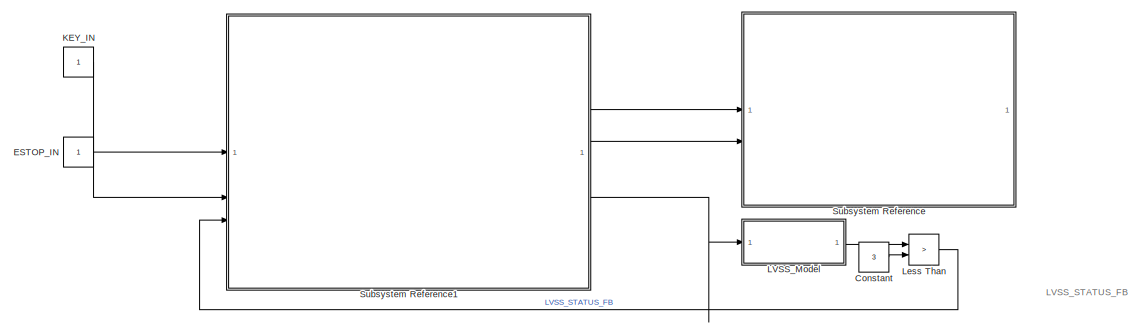
[diagram: root canvas - part 1/3, top right region]
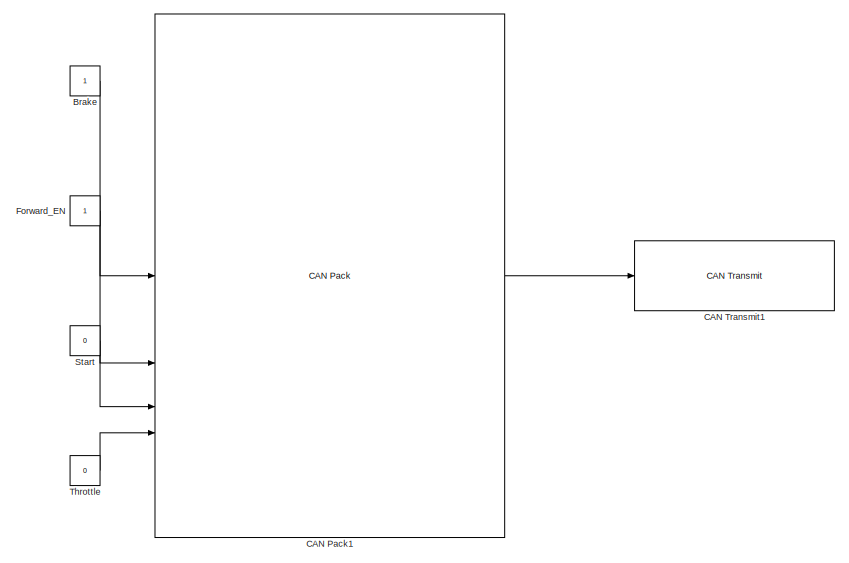
[diagram: root canvas - part 2/3, center side, full height]
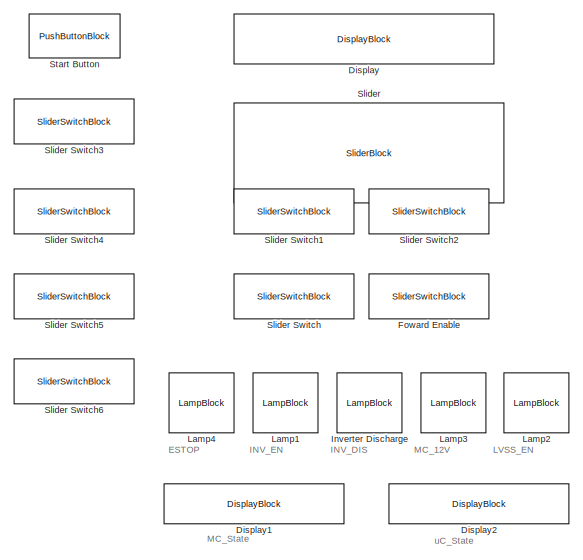
[diagram: root canvas - part 3/3, left side, full height]
MODEL slx_54726d40bb77
KIND model
CONFIG AbsTol = auto
CONFIG EnableMultiTasking = off
CONFIG FixedStep = 0.0001
CONFIG MaxStep = auto
CONFIG MinStep = auto
CONFIG RelTol = 1e-3
CONFIG SampleTimeConstraint = Unconstrained
CONFIG SolverName = ode8
CONFIG StartTime = 0.0
CONFIG StopTime = inf
BLOCK [Constant] Brake
BLOCK [Reference] CAN Pack1  REF=canmsglib/CAN Pack
  LibrarySourceBlock = canlib/CAN Pack
  SourceBlock = canmsglib/CAN Pack
  SourceType = CAN Pack
BLOCK [Reference] CAN Transmit1  REF=canlib/CAN Transmit
  SourceBlock = canlib/CAN Transmit
  SourceType = CAN Transmit
BLOCK [Constant] Constant
  Value = 3
BLOCK [DisplayBlock] Display
  AttributesFormatString = Motor Controller Throttle
  LabelPosition = Hide
  Transparency = 1
BLOCK [DisplayBlock] Display1
  LabelPosition = Hide
  Transparency = 1
BLOCK [DisplayBlock] Display2
  LabelPosition = Hide
  Transparency = 1
BLOCK [Constant] ESTOP_IN
BLOCK [Constant] Forward_EN
BLOCK [SliderSwitchBlock] Foward Enable
  AttributesFormatString = Forward Enable
BLOCK [LampBlock] Inverter Discharge
  LabelPosition = Hide
BLOCK [Constant] KEY_IN
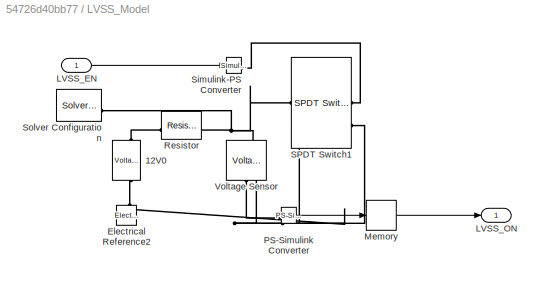
BLOCK [SubSystem] LVSS_Model
BLOCK [Reference] LVSS_Model/12V0  REF=ee_lib/Sources/Voltage Source
  NameLocation = right
  SourceBlock = ee_lib/Sources/Voltage Source
  SourceType = Voltage Source
BLOCK [Reference] LVSS_Model/Electrical Reference2  REF=fl_lib/Electrical/Electrical Elements/Electrical Reference
  LibrarySourceBlock = ee_lib/Connectors &\nReferences/Electrical Reference
  NameLocation = right
  SourceBlock = fl_lib/Electrical/Electrical Elements/Electrical Reference
  SourceType = Electrical Reference
BLOCK [Inport] LVSS_Model/LVSS_EN
BLOCK [Outport] LVSS_Model/LVSS_ON
BLOCK [Memory] LVSS_Model/Memory
BLOCK [Reference] LVSS_Model/PS-Simulink Converter  REF=nesl_utility/PS-Simulink
Converter
  SourceBlock = nesl_utility/PS-Simulink\nConverter
  SourceType = PS-Simulink\nConverter
BLOCK [Reference] LVSS_Model/Resistor  REF=fl_lib/Electrical/Electrical Elements/Resistor
  SourceBlock = fl_lib/Electrical/Electrical Elements/Resistor
  SourceType = Resistor
BLOCK [Reference] LVSS_Model/SPDT Switch1  REF=ee_lib/Switches & Breakers/SPDT Switch
  SourceBlock = ee_lib/Switches & Breakers/SPDT Switch
  SourceType = SPDT Switch
BLOCK [Reference] LVSS_Model/Simulink-PS Converter  REF=nesl_utility/Simulink-PS
Converter
  SourceBlock = nesl_utility/Simulink-PS\nConverter
  SourceType = Simulink-PS\nConverter
BLOCK [Reference] LVSS_Model/Solver Configuration  REF=nesl_utility/Solver
Configuration
  SourceBlock = nesl_utility/Solver\nConfiguration
  SourceType = Solver\nConfiguration
BLOCK [Reference] LVSS_Model/Voltage Sensor  REF=fl_lib/Electrical/Electrical Sensors/Voltage Sensor
  NameLocation = right
  SourceBlock = fl_lib/Electrical/Electrical Sensors/Voltage Sensor
  SourceType = Voltage Sensor
BLOCK [LampBlock] Lamp1
  LabelPosition = Hide
BLOCK [LampBlock] Lamp2
  LabelPosition = Hide
BLOCK [LampBlock] Lamp3
  LabelPosition = Hide
BLOCK [LampBlock] Lamp4
  LabelPosition = Hide
BLOCK [RelationalOperator] Less Than
  InputSameDT = off
  Operator = >
  OutDataTypeStr = boolean
  RndMeth = Simplest
BLOCK [SliderBlock] Slider
  ScaleMax = 4000
BLOCK [SliderSwitchBlock] Slider Switch
  AttributesFormatString = Brake
BLOCK [SliderSwitchBlock] Slider Switch1
  AttributesFormatString = ESTOP
BLOCK [SliderSwitchBlock] Slider Switch2
  AttributesFormatString = Ignition
BLOCK [SliderSwitchBlock] Slider Switch3
  AttributesFormatString = ESTOP
BLOCK [SliderSwitchBlock] Slider Switch4
  AttributesFormatString = ESTOP
BLOCK [SliderSwitchBlock] Slider Switch5
  AttributesFormatString = ESTOP
BLOCK [SliderSwitchBlock] Slider Switch6
  AttributesFormatString = ESTOP
BLOCK [Constant] Start
  Value = 0
BLOCK [PushButtonBlock] Start Button
  ButtonText = Start
  OffValue = 0.000000
BLOCK [SubSystem] Subsystem Reference
  ReferencedSubsystem = MC_CAN
BLOCK [SubSystem] Subsystem Reference1
  ReferencedSubsystem = VCU_Subsystem
BLOCK [Constant] Throttle
  Value = 0
ANNOTATION (root): ESTOP
ANNOTATION (root): INV_DIS
ANNOTATION (root): INV_EN
ANNOTATION (root): LVSS_EN
ANNOTATION (root): LVSS_STATUS_FB
ANNOTATION (root): MC_12V
ANNOTATION (root): MC_State
ANNOTATION (root): uC_State
LINE Brake:1 -> CAN Pack1:1
LINE CAN Pack1:1 -> CAN Transmit1:1
LINE Constant:1 -> Less Than:2
LINE ESTOP_IN:1 -> Subsystem Reference1:2
LINE Forward_EN:1 -> CAN Pack1:2
LINE KEY_IN:1 -> Subsystem Reference1:1
LINE LVSS_Model/LVSS_EN:1 -> LVSS_Model/Simulink-PS Converter:1
LINE LVSS_Model/Memory:1 -> LVSS_Model/LVSS_ON:1
LINE LVSS_Model/PS-Simulink Converter:1 -> LVSS_Model/Memory:1
LINE LVSS_Model:1 -> Less Than:1
LINE Less Than:1 -> Subsystem Reference1:3
LINE Start:1 -> CAN Pack1:3
LINE Subsystem Reference1:1 -> Subsystem Reference:1
LINE Subsystem Reference1:2 -> LVSS_Model:1
LINE Subsystem Reference1:3 -> Subsystem Reference:2
LINE Throttle:1 -> CAN Pack1:4
PLINE LVSS_Model/12V0:LConn1 -- LVSS_Model/Resistor:LConn1
PNET net1: LVSS_Model/12V0:RConn1 -- LVSS_Model/Electrical Reference2:LConn1 -- LVSS_Model/SPDT Switch1:LConn2 -- LVSS_Model/SPDT Switch1:RConn2 -- LVSS_Model/Voltage Sensor:RConn2
PLINE LVSS_Model/PS-Simulink Converter:LConn1 -- LVSS_Model/Voltage Sensor:RConn1
PNET net2: LVSS_Model/Resistor:RConn1 -- LVSS_Model/SPDT Switch1:RConn1 -- LVSS_Model/Solver Configuration:RConn1 -- LVSS_Model/Voltage Sensor:LConn1
PLINE LVSS_Model/SPDT Switch1:LConn1 -- LVSS_Model/Simulink-PS Converter:RConn1
note: PNET lines group multi-terminal physical nets as a canonical sorted terminal list (undirected conserving connections); 2-terminal nets keep the pairwise PLINE form
